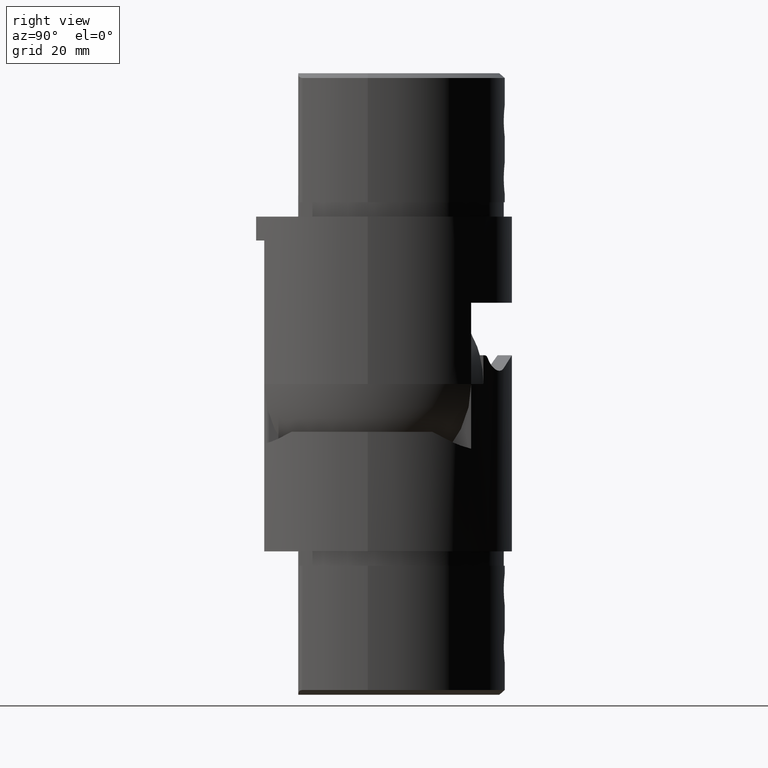
[diagram: clean part render]
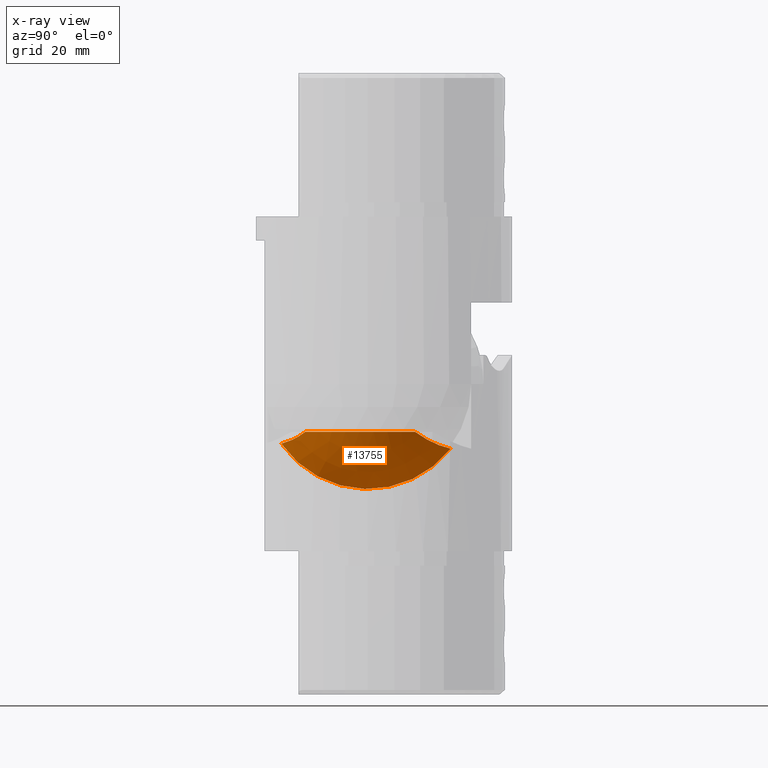
[diagram: x-ray — body ghosted, one internal face saturated and labeled with its STEP entity id]
A machine part, right view, then the same camera in x-ray: the body is ghosted and one INTERNAL B-rep face — a face not visible from any outside direction — is saturated and labeled: STEP entity #13755.
In plain terms, the highlighted spherical surface has radius 30.4 mm.
Its self-contained STEP definition (entity closure, byte-faithful):
#350 = CARTESIAN_POINT ( 'NONE',  ( -26.95889149224160519, 9.868037774022932140, -23.00000000000000355 ) ) ;
#1020 = CARTESIAN_POINT ( 'NONE',  ( -24.77636347382195581, 12.97794762838809213, -21.05880111915283592 ) ) ;
#1315 = CARTESIAN_POINT ( 'NONE',  ( -26.95889149224160519, 9.868037774022932140, -23.00000000000000355 ) ) ;
#1326 = B_SPLINE_CURVE_WITH_KNOTS ( 'NONE', 3,
 ( #17213, #5585, #26314, #28962, #10292, #3245, #12430, #1020, #28662, #19557, #15093, #1315 ),
 .UNSPECIFIED., .F., .F.,
 ( 4, 2, 2, 2, 2, 4 ),
 ( 0.004200204808921487870, 0.006751884336161450770, 0.008027724099781434822, 0.009303563863401420608, 0.01185524339064138177, 0.01440692291788134641 ),
 .UNSPECIFIED. ) ;
#1516 = VERTEX_POINT ( 'NONE', #11768 ) ;
#2120 = ORIENTED_EDGE ( 'NONE', *, *, #26302, .T. ) ;
#2454 = DIRECTION ( 'NONE',  ( 1.000000000000000000, 0.000000000000000000, 0.000000000000000000 ) ) ;
#3008 = CIRCLE ( 'NONE', #5855, 21.98090080046766559 ) ;
#3245 = CARTESIAN_POINT ( 'NONE',  ( -23.77083270364802203, 14.22727355251521075, -20.47499041195124647 ) ) ;
#3356 = FACE_OUTER_BOUND ( 'NONE', #17632, .T. ) ;
#3609 = VERTEX_POINT ( 'NONE', #25964 ) ;
#4027 = AXIS2_PLACEMENT_3D ( 'NONE', #16310, #9466, #2454 ) ;
#4318 = CIRCLE ( 'NONE', #4027, 28.70818698559698134 ) ;
#4703 = B_SPLINE_CURVE_WITH_KNOTS ( 'NONE', 3,
 ( #6562, #20417, #6465, #8805, #8912, #6667, #25157, #25052 ),
 .UNSPECIFIED., .F., .F.,
 ( 4, 2, 2, 4 ),
 ( 0.004129030395476733506, 0.005941587108861404176, 0.007754143822246075714, 0.01137925724901541792 ),
 .UNSPECIFIED. ) ;
#4749 = ORIENTED_EDGE ( 'NONE', *, *, #7139, .F. ) ;
#5372 = CARTESIAN_POINT ( 'NONE',  ( -21.00000000000000000, 17.32475262880953437, -19.47177223910843935 ) ) ;
#5585 = CARTESIAN_POINT ( 'NONE',  ( -21.58261362849102838, 16.71758942306105311, -19.59861323289808865 ) ) ;
#5855 = AXIS2_PLACEMENT_3D ( 'NONE', #28503, #9825, #24125 ) ;
#6300 = VERTEX_POINT ( 'NONE', #350 ) ;
#6465 = CARTESIAN_POINT ( 'NONE',  ( -21.83822267420182328, -17.23466967474404754, -20.72843748609382430 ) ) ;
#6562 = CARTESIAN_POINT ( 'NONE',  ( -21.00000000000000000, -18.07901671060724524, -20.49763403280867635 ) ) ;
#6667 = CARTESIAN_POINT ( 'NONE',  ( -24.20183027868584702, -14.68321811185918691, -21.85044134791419523 ) ) ;
#7139 = EDGE_CURVE ( 'NONE', #16041, #6300, #1326, .T. ) ;
#8805 = CARTESIAN_POINT ( 'NONE',  ( -22.65385630325356559, -16.38097985736940387, -21.04176650159948281 ) ) ;
#8912 = CARTESIAN_POINT ( 'NONE',  ( -23.05182780884389260, -15.95313110486721087, -21.22543512922490549 ) ) ;
#9466 = DIRECTION ( 'NONE',  ( 0.000000000000000000, 0.000000000000000000, 1.000000000000000000 ) ) ;
#9825 = DIRECTION ( 'NONE',  ( 1.000000000000000000, -0.000000000000000000, 0.000000000000000000 ) ) ;
#10292 = CARTESIAN_POINT ( 'NONE',  ( -23.24489172542613957, 14.85286942140938393, -20.21677098822788921 ) ) ;
#11768 = CARTESIAN_POINT ( 'NONE',  ( -25.57893055319968312, -13.03373744382583865, -23.00000000000000355 ) ) ;
#12430 = CARTESIAN_POINT ( 'NONE',  ( -24.02714953771073425, 13.91478771500437617, -20.61385235333976595 ) ) ;
#12941 = EDGE_CURVE ( 'NONE', #16041, #3609, #3008, .T. ) ;
#13755 = ADVANCED_FACE ( 'NONE', ( #3356 ), #21537, .F. ) ;
#15093 = CARTESIAN_POINT ( 'NONE',  ( -26.56446385619118900, 10.48616050918358766, -22.54663266577232861 ) ) ;
#15392 = ORIENTED_EDGE ( 'NONE', *, *, #26089, .F. ) ;
#15994 = DIRECTION ( 'NONE',  ( 0.000000000000000000, 0.000000000000000000, -1.000000000000000000 ) ) ;
#16041 = VERTEX_POINT ( 'NONE', #5372 ) ;
#16310 = CARTESIAN_POINT ( 'NONE',  ( 0.000000000000000000, 0.000000000000000000, -23.00000000000000000 ) ) ;
#17213 = CARTESIAN_POINT ( 'NONE',  ( -21.00000000000000000, 17.32475262880953437, -19.47177223910843935 ) ) ;
#17632 = EDGE_LOOP ( 'NONE', ( #4749, #18126, #2120, #15392 ) ) ;
#18020 = DIRECTION ( 'NONE',  ( -1.000000000000000000, 0.000000000000000000, -0.000000000000000000 ) ) ;
#18126 = ORIENTED_EDGE ( 'NONE', *, *, #12941, .T. ) ;
#18222 = CARTESIAN_POINT ( 'NONE',  ( 0.000000000000000000, 0.000000000000000000, -33.00000000000000000 ) ) ;
#19557 = CARTESIAN_POINT ( 'NONE',  ( -26.14361793196694350, 11.10829893349223063, -22.13707277399400297 ) ) ;
#20417 = CARTESIAN_POINT ( 'NONE',  ( -21.42276921053990790, -17.65830798310373595, -20.59938703778727742 ) ) ;
#21537 = SPHERICAL_SURFACE ( 'NONE', #28815, 30.39999999999999858 ) ;
#24125 = DIRECTION ( 'NONE',  ( 0.000000000000000000, 0.000000000000000000, 1.000000000000000000 ) ) ;
#25052 = CARTESIAN_POINT ( 'NONE',  ( -25.57893055319968312, -13.03373744382583865, -23.00000000000000355 ) ) ;
#25157 = CARTESIAN_POINT ( 'NONE',  ( -24.91636945984976492, -13.84687926932286572, -22.36506728640718578 ) ) ;
#25964 = CARTESIAN_POINT ( 'NONE',  ( -21.00000000000000000, -18.07901671060724524, -20.49763403280867635 ) ) ;
#26089 = EDGE_CURVE ( 'NONE', #6300, #1516, #4318, .T. ) ;
#26302 = EDGE_CURVE ( 'NONE', #3609, #1516, #4703, .T. ) ;
#26314 = CARTESIAN_POINT ( 'NONE',  ( -22.14955727610874803, 16.10282611081307280, -19.77143292486839243 ) ) ;
#28503 = CARTESIAN_POINT ( 'NONE',  ( -21.00000000000000000, 0.000000000000000000, -33.00000000000000000 ) ) ;
#28662 = CARTESIAN_POINT ( 'NONE',  ( -25.24955516596095251, 12.35409473285054460, -21.39299526411571506 ) ) ;
#28815 = AXIS2_PLACEMENT_3D ( 'NONE', #18222, #18020, #15994 ) ;
#28962 = CARTESIAN_POINT ( 'NONE',  ( -22.97445288258762019, 15.16689433782646113, -20.09711072368055085 ) ) ;